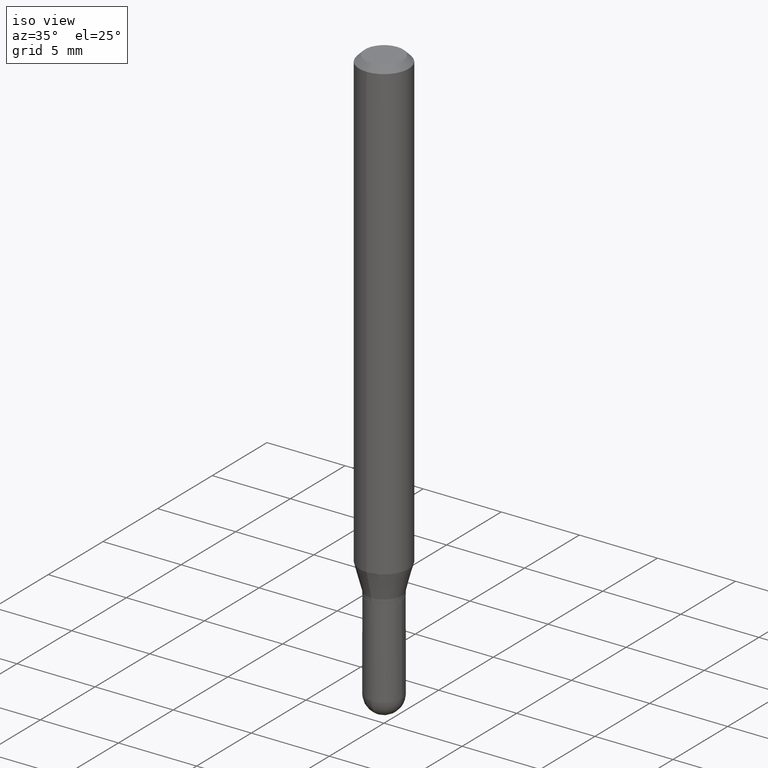
[diagram: clean part render]
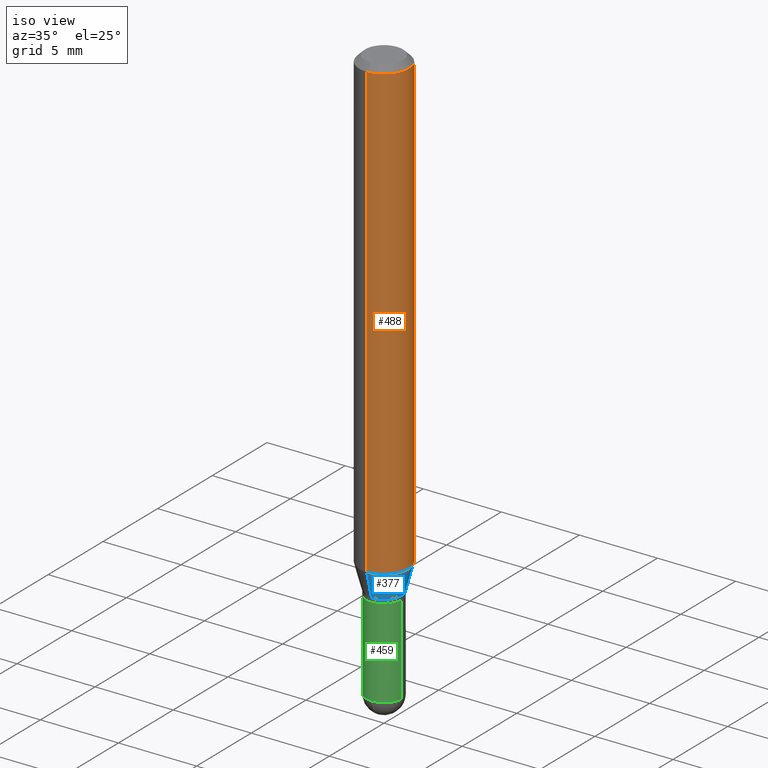
[diagram: same view with three faces highlighted in distinct colors, each labeled with its STEP entity id]
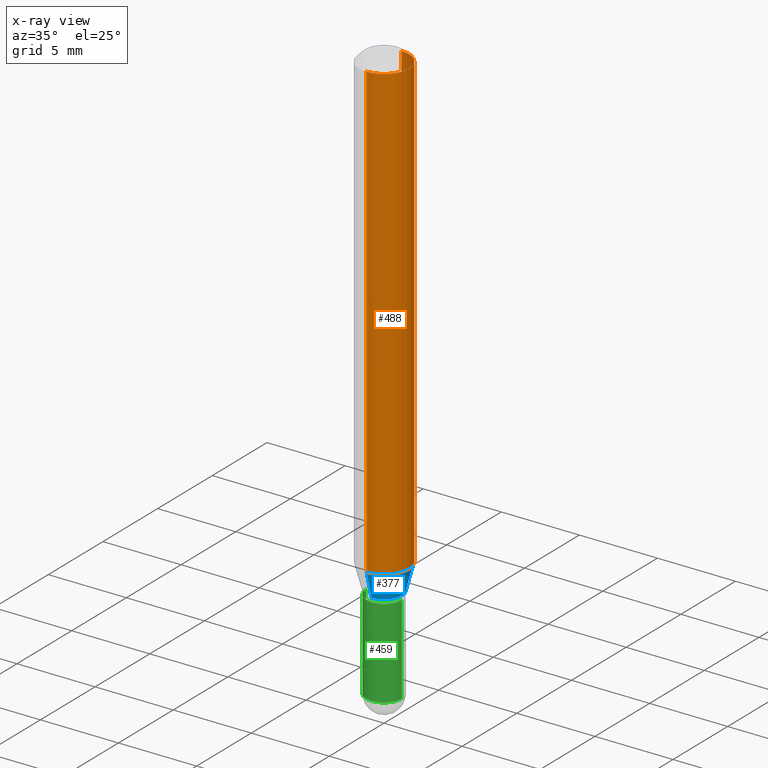
[diagram: x-ray of the same camera — body ghosted, the three highlighted faces saturated]
A machine part, iso view with three faces highlighted in distinct colors.
The next image is the same camera in x-ray (body ghosted, the three faces saturated) — at least one of them is partly hidden behind the body in this view.
Their STEP definitions:

[orange] entity #488 — the highlighted cylindrical surface (edge-blend (fillet) strip) has radius 1.5875 mm, axis along (-0, 0, 1).
#1 = VERTEX_POINT ( 'NONE', #166 ) ;
#2 = ORIENTED_EDGE ( 'NONE', *, *, #337, .F. ) ;
#16 = CARTESIAN_POINT ( 'NONE',  ( 3.668206135289095817E-31, -5.237217818050098401E-17, -0.01500000000000032904 ) ) ;
#17 = DIRECTION ( 'NONE',  ( -6.982962677686265922E-15, -1.000000000000000000, 3.483106191921935554E-15 ) ) ;
#30 = ORIENTED_EDGE ( 'NONE', *, *, #175, .F. ) ;
#38 = CIRCLE ( 'NONE', #49, 0.06250000000000000000 ) ;
#49 = AXIS2_PLACEMENT_3D ( 'NONE', #16, #376, #17 ) ;
#52 = ORIENTED_EDGE ( 'NONE', *, *, #370, .T. ) ;
#60 = DIRECTION ( 'NONE',  ( -6.982962677686265922E-15, -1.000000000000000000, 3.491478545366655797E-15 ) ) ;
#80 = AXIS2_PLACEMENT_3D ( 'NONE', #104, #348, #60 ) ;
#83 = EDGE_CURVE ( 'NONE', #445, #167, #130, .T. ) ;
#103 = DIRECTION ( 'NONE',  ( -2.445470756859343624E-29, 3.491478545366656192E-15, 1.000000000000000000 ) ) ;
#104 = CARTESIAN_POINT ( 'NONE',  ( 0.000000000000000000, 0.000000000000000000, 0.000000000000000000 ) ) ;
#128 = VECTOR ( 'NONE', #103, 39.37007874015748143 ) ;
#130 = LINE ( 'NONE', #287, #379 ) ;
#153 = DIRECTION ( 'NONE',  ( -6.982962677686265922E-15, -1.000000000000000000, 4.370956789862821150E-15 ) ) ;
#166 = CARTESIAN_POINT ( 'NONE',  ( -4.364351673553634183E-16, -0.06250000000000402456, -1.154689110867545221 ) ) ;
#167 = VERTEX_POINT ( 'NONE', #373 ) ;
#175 = EDGE_CURVE ( 'NONE', #428, #167, #38, .T. ) ;
#227 = LINE ( 'NONE', #387, #128 ) ;
#287 = CARTESIAN_POINT ( 'NONE',  ( 4.440892098500625669E-16, 0.06250000000000000000, -2.182174090854159873E-16 ) ) ;
#301 = AXIS2_PLACEMENT_3D ( 'NONE', #347, #310, #153 ) ;
#310 = DIRECTION ( 'NONE',  ( -2.445470756859343624E-29, 3.491478545366655797E-15, 1.000000000000000000 ) ) ;
#337 = EDGE_CURVE ( 'NONE', #1, #428, #227, .T. ) ;
#347 = CARTESIAN_POINT ( 'NONE',  ( 2.823758453890498929E-29, -4.031572257162534122E-15, -1.154689110867545443 ) ) ;
#348 = DIRECTION ( 'NONE',  ( -2.445470756859343624E-29, 3.491478545366655797E-15, 1.000000000000000000 ) ) ;
#370 = EDGE_CURVE ( 'NONE', #1, #445, #455, .T. ) ;
#373 = CARTESIAN_POINT ( 'NONE',  ( 4.440892098500909166E-16, 0.06249999999999993755, -0.01500000000000054588 ) ) ;
#376 = DIRECTION ( 'NONE',  ( -2.445470756859343624E-29, 3.491478545366655797E-15, 1.000000000000000000 ) ) ;
#379 = VECTOR ( 'NONE', #415, 39.37007874015748143 ) ;
#387 = CARTESIAN_POINT ( 'NONE',  ( -4.364351673553916201E-16, -0.06250000000000000000, 2.182174090854159873E-16 ) ) ;
#400 = EDGE_LOOP ( 'NONE', ( #52, #507, #30, #2 ) ) ;
#415 = DIRECTION ( 'NONE',  ( -2.445470756859343624E-29, 3.491478545366656192E-15, 1.000000000000000000 ) ) ;
#419 = FACE_OUTER_BOUND ( 'NONE', #400, .T. ) ;
#425 = CYLINDRICAL_SURFACE ( 'NONE', #80, 0.06250000000000000000 ) ;
#427 = CARTESIAN_POINT ( 'NONE',  ( 4.440892098500907193E-16, 0.06249999999999596156, -1.154689110867545665 ) ) ;
#428 = VERTEX_POINT ( 'NONE', #460 ) ;
#445 = VERTEX_POINT ( 'NONE', #427 ) ;
#455 = CIRCLE ( 'NONE', #301, 0.06250000000000000000 ) ;
#460 = CARTESIAN_POINT ( 'NONE',  ( -4.364351673553912750E-16, -0.06250000000000005551, -0.01500000000000011047 ) ) ;
#488 = ADVANCED_FACE ( 'NONE', ( #419 ), #425, .T. ) ;
#507 = ORIENTED_EDGE ( 'NONE', *, *, #83, .T. ) ;

[blue] entity #377 — the highlighted conical surface has half-angle 15 deg.
#1 = VERTEX_POINT ( 'NONE', #166 ) ;
#18 = CONICAL_SURFACE ( 'NONE', #168, 0.04500000000000006078, 0.2617993877991500740 ) ;
#67 = CARTESIAN_POINT ( 'NONE',  ( 3.197442310920752950E-16, 0.04499999999999580030, -1.220000000000000417 ) ) ;
#82 = ORIENTED_EDGE ( 'NONE', *, *, #262, .T. ) ;
#84 = VERTEX_POINT ( 'NONE', #214 ) ;
#94 = DIRECTION ( 'NONE',  ( -6.982962677686265922E-15, -1.000000000000000000, 3.035386659626955187E-15 ) ) ;
#101 = VECTOR ( 'NONE', #135, 39.37007874015748854 ) ;
#107 = ORIENTED_EDGE ( 'NONE', *, *, #277, .F. ) ;
#132 = VERTEX_POINT ( 'NONE', #417 ) ;
#135 = DIRECTION ( 'NONE',  ( -1.807323732225328562E-15, -0.2588190451025179639, 0.9659258262890690894 ) ) ;
#153 = DIRECTION ( 'NONE',  ( -6.982962677686265922E-15, -1.000000000000000000, 4.370956789862821150E-15 ) ) ;
#166 = CARTESIAN_POINT ( 'NONE',  ( -4.364351673553634183E-16, -0.06250000000000402456, -1.154689110867545221 ) ) ;
#168 = AXIS2_PLACEMENT_3D ( 'NONE', #341, #258, #308 ) ;
#176 = LINE ( 'NONE', #499, #101 ) ;
#179 = CARTESIAN_POINT ( 'NONE',  ( 2.983474323368400179E-29, -4.259603825347321390E-15, -1.220000000000000417 ) ) ;
#183 = LINE ( 'NONE', #67, #239 ) ;
#198 = ORIENTED_EDGE ( 'NONE', *, *, #329, .T. ) ;
#202 = CIRCLE ( 'NONE', #293, 0.04500000000000006078 ) ;
#214 = CARTESIAN_POINT ( 'NONE',  ( 3.819167204710830318E-16, 0.04499999999999580030, -1.220000000000000417 ) ) ;
#239 = VECTOR ( 'NONE', #353, 39.37007874015748854 ) ;
#258 = DIRECTION ( 'NONE',  ( -2.445470756859343624E-29, 3.491478545366655797E-15, 1.000000000000000000 ) ) ;
#262 = EDGE_CURVE ( 'NONE', #132, #84, #202, .T. ) ;
#277 = EDGE_CURVE ( 'NONE', #132, #1, #176, .T. ) ;
#293 = AXIS2_PLACEMENT_3D ( 'NONE', #179, #457, #94 ) ;
#301 = AXIS2_PLACEMENT_3D ( 'NONE', #347, #310, #153 ) ;
#307 = ORIENTED_EDGE ( 'NONE', *, *, #370, .F. ) ;
#308 = DIRECTION ( 'NONE',  ( -6.982962677686265922E-15, -1.000000000000000000, 3.035386659626955187E-15 ) ) ;
#310 = DIRECTION ( 'NONE',  ( -2.445470756859343624E-29, 3.491478545366655797E-15, 1.000000000000000000 ) ) ;
#329 = EDGE_CURVE ( 'NONE', #84, #445, #183, .T. ) ;
#341 = CARTESIAN_POINT ( 'NONE',  ( 2.983474323368400179E-29, -4.259603825347321390E-15, -1.220000000000000417 ) ) ;
#345 = EDGE_LOOP ( 'NONE', ( #82, #198, #307, #107 ) ) ;
#347 = CARTESIAN_POINT ( 'NONE',  ( 2.823758453890498929E-29, -4.031572257162534122E-15, -1.154689110867545443 ) ) ;
#353 = DIRECTION ( 'NONE',  ( 1.839019923739598738E-15, 0.2588190451025247363, 0.9659258262890673130 ) ) ;
#370 = EDGE_CURVE ( 'NONE', #1, #445, #455, .T. ) ;
#377 = ADVANCED_FACE ( 'NONE', ( #391 ), #18, .T. ) ;
#391 = FACE_OUTER_BOUND ( 'NONE', #345, .T. ) ;
#417 = CARTESIAN_POINT ( 'NONE',  ( -3.142333204958525479E-16, -0.04500000000000432127, -1.220000000000000195 ) ) ;
#427 = CARTESIAN_POINT ( 'NONE',  ( 4.440892098500907193E-16, 0.06249999999999596156, -1.154689110867545665 ) ) ;
#445 = VERTEX_POINT ( 'NONE', #427 ) ;
#455 = CIRCLE ( 'NONE', #301, 0.06250000000000000000 ) ;
#457 = DIRECTION ( 'NONE',  ( -2.445470756859343624E-29, 3.491478545366655797E-15, 1.000000000000000000 ) ) ;
#499 = CARTESIAN_POINT ( 'NONE',  ( -3.142333204958525479E-16, -0.04500000000000432127, -1.220000000000000195 ) ) ;

[green] entity #459 — the highlighted cylindrical surface (edge-blend (fillet) strip) has radius 1.143 mm, axis along (-0, 0, 1).
#10 = ORIENTED_EDGE ( 'NONE', *, *, #31, .F. ) ;
#15 = EDGE_CURVE ( 'NONE', #37, #479, #294, .T. ) ;
#20 = VECTOR ( 'NONE', #90, 39.37007874015748143 ) ;
#24 = CARTESIAN_POINT ( 'NONE',  ( 0.000000000000000000, 0.000000000000000000, 0.000000000000000000 ) ) ;
#31 = EDGE_CURVE ( 'NONE', #161, #37, #164, .T. ) ;
#33 = DIRECTION ( 'NONE',  ( -2.445468806185136597E-29, 3.491481338843145583E-15, 1.000000000000000000 ) ) ;
#37 = VERTEX_POINT ( 'NONE', #324 ) ;
#42 = CARTESIAN_POINT ( 'NONE',  ( -0.04500000000000000527, 3.197442310920451211E-16, -2.213520790614707910E-30 ) ) ;
#59 = CARTESIAN_POINT ( 'NONE',  ( -3.142333204958468779E-16, -0.04500000000000515393, -1.454999999999999849 ) ) ;
#69 = ORIENTED_EDGE ( 'NONE', *, *, #15, .F. ) ;
#90 = DIRECTION ( 'NONE',  ( -2.445468806185136877E-29, 3.491481338843145188E-15, 1.000000000000000000 ) ) ;
#106 = DIRECTION ( 'NONE',  ( 1.000000000000000000, -6.982962677686266711E-15, 0.000000000000000000 ) ) ;
#112 = AXIS2_PLACEMENT_3D ( 'NONE', #367, #402, #361 ) ;
#138 = CARTESIAN_POINT ( 'NONE',  ( 0.04499999999999999833, -4.608755367272951648E-15, -1.230000000000000204 ) ) ;
#140 = FACE_OUTER_BOUND ( 'NONE', #187, .T. ) ;
#144 = CARTESIAN_POINT ( 'NONE',  ( 0.04500000000000000527, -3.142333204958820809E-16, 2.194279549108171317E-30 ) ) ;
#150 = VERTEX_POINT ( 'NONE', #59 ) ;
#161 = VERTEX_POINT ( 'NONE', #411 ) ;
#164 = LINE ( 'NONE', #42, #20 ) ;
#170 = AXIS2_PLACEMENT_3D ( 'NONE', #423, #383, #106 ) ;
#171 = DIRECTION ( 'NONE',  ( -2.445468806185136597E-29, 3.491481338843145583E-15, 1.000000000000000000 ) ) ;
#187 = EDGE_LOOP ( 'NONE', ( #10, #189, #272, #405, #69 ) ) ;
#189 = ORIENTED_EDGE ( 'NONE', *, *, #407, .T. ) ;
#196 = VECTOR ( 'NONE', #223, 39.37007874015748143 ) ;
#223 = DIRECTION ( 'NONE',  ( -2.445468806185136877E-29, 3.491481338843145188E-15, 1.000000000000000000 ) ) ;
#232 = CIRCLE ( 'NONE', #313, 0.04500000000000001221 ) ;
#272 = ORIENTED_EDGE ( 'NONE', *, *, #497, .T. ) ;
#294 = CIRCLE ( 'NONE', #112, 0.04499999999999999833 ) ;
#302 = DIRECTION ( 'NONE',  ( 1.000000000000000000, -6.982962677686267499E-15, 4.876176775795935793E-29 ) ) ;
#313 = AXIS2_PLACEMENT_3D ( 'NONE', #315, #171, #491 ) ;
#315 = CARTESIAN_POINT ( 'NONE',  ( 3.558157112999374623E-29, -5.080105348016777334E-15, -1.455000000000000293 ) ) ;
#324 = CARTESIAN_POINT ( 'NONE',  ( -0.04499999999999999833, -4.367569466304877886E-15, -1.230000000000000204 ) ) ;
#361 = DIRECTION ( 'NONE',  ( 1.000000000000000000, -6.982962677686269077E-15, 0.000000000000000000 ) ) ;
#367 = CARTESIAN_POINT ( 'NONE',  ( 3.007926631607718216E-29, -4.294522046777069173E-15, -1.230000000000000204 ) ) ;
#383 = DIRECTION ( 'NONE',  ( -2.445468806185136597E-29, 3.491481338843145583E-15, 1.000000000000000000 ) ) ;
#386 = CYLINDRICAL_SURFACE ( 'NONE', #388, 0.04500000000000000527 ) ;
#388 = AXIS2_PLACEMENT_3D ( 'NONE', #24, #33, #302 ) ;
#389 = LINE ( 'NONE', #144, #196 ) ;
#395 = VERTEX_POINT ( 'NONE', #504 ) ;
#402 = DIRECTION ( 'NONE',  ( -2.445468806185136597E-29, 3.491481338843145583E-15, 1.000000000000000000 ) ) ;
#405 = ORIENTED_EDGE ( 'NONE', *, *, #444, .T. ) ;
#407 = EDGE_CURVE ( 'NONE', #161, #150, #232, .T. ) ;
#411 = CARTESIAN_POINT ( 'NONE',  ( -0.04500000000000001221, -4.367569466304877886E-15, -1.455000000000000293 ) ) ;
#423 = CARTESIAN_POINT ( 'NONE',  ( 3.558157112999374623E-29, -5.080105348016777334E-15, -1.455000000000000293 ) ) ;
#444 = EDGE_CURVE ( 'NONE', #395, #479, #389, .T. ) ;
#456 = CIRCLE ( 'NONE', #170, 0.04500000000000001221 ) ;
#459 = ADVANCED_FACE ( 'NONE', ( #140 ), #386, .T. ) ;
#479 = VERTEX_POINT ( 'NONE', #138 ) ;
#491 = DIRECTION ( 'NONE',  ( 1.000000000000000000, -6.982962677686266711E-15, 0.000000000000000000 ) ) ;
#497 = EDGE_CURVE ( 'NONE', #150, #395, #456, .T. ) ;
#504 = CARTESIAN_POINT ( 'NONE',  ( 0.04500000000000001221, -5.001547017892805729E-15, -1.455000000000000293 ) ) ;